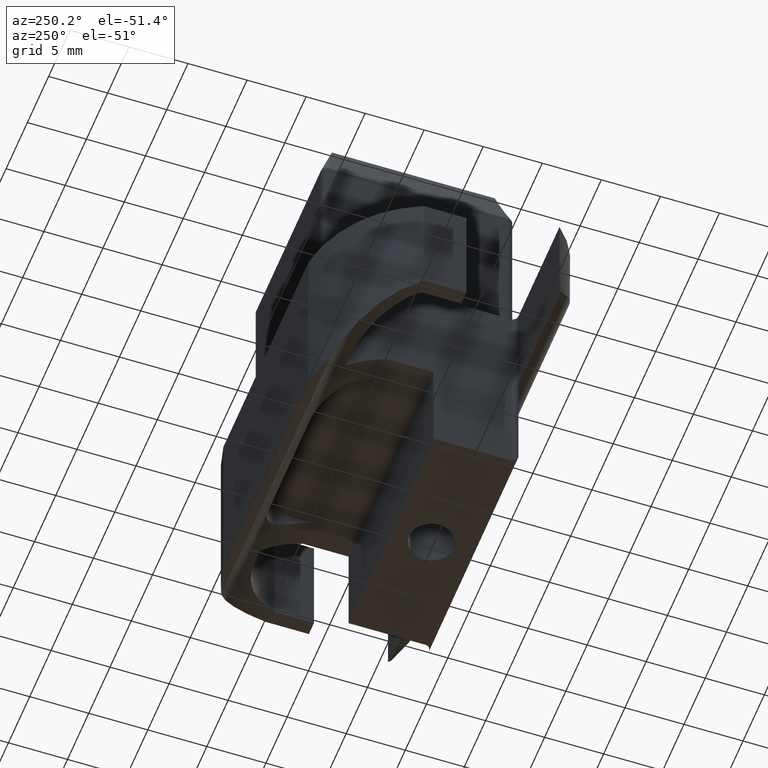
[diagram: clean part render]
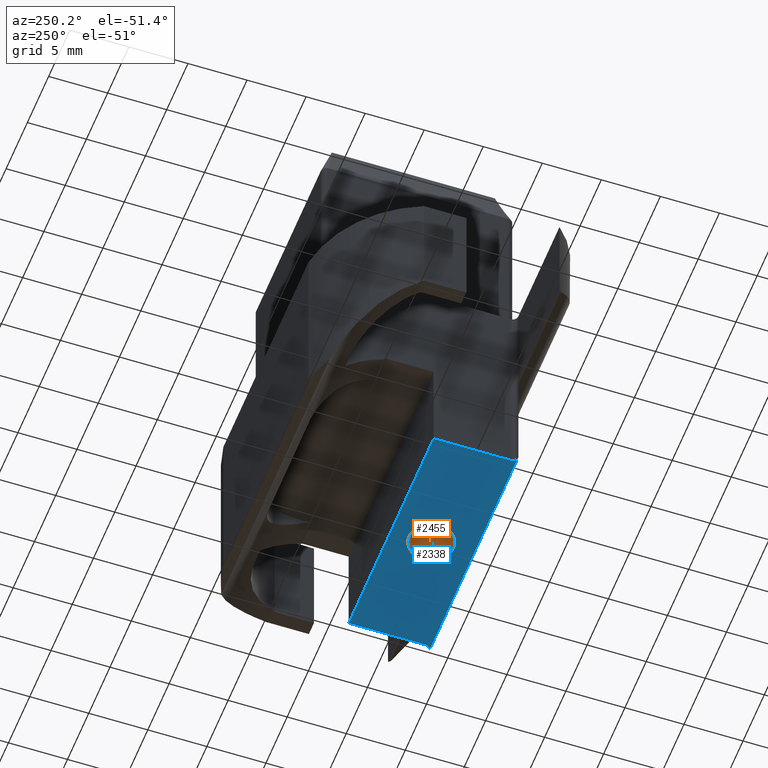
[diagram: same view with the hole feature highlighted: cylindrical wall and planar end face, labeled with their STEP entity ids]
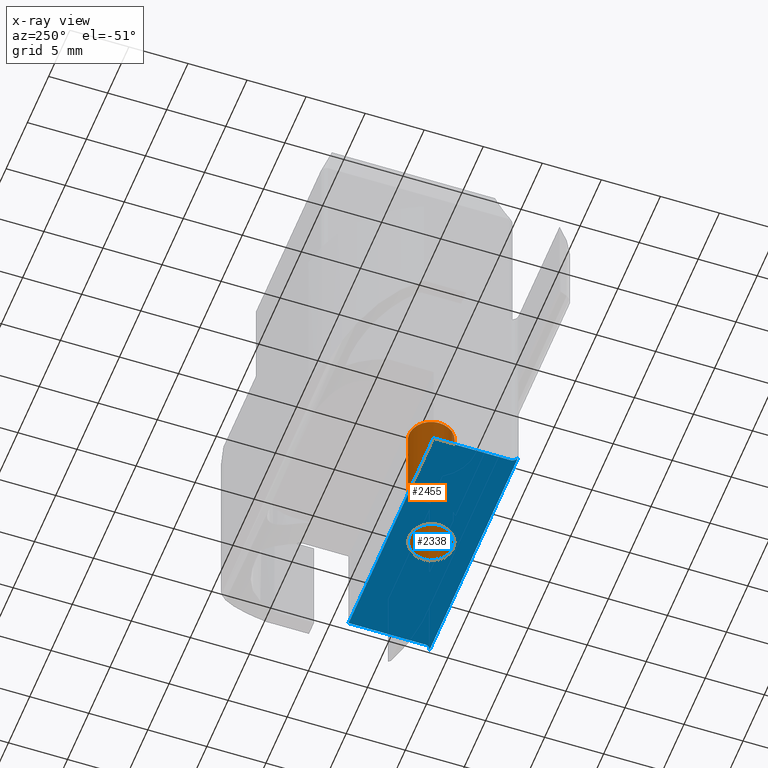
[diagram: x-ray of the same camera — body ghosted, the hole faces saturated]
A machine part, auxiliary view. The highlighted faces form one hole feature of diameter 3.75 mm: the cylindrical wall (entity #2455, orange) and its adjacent planar end face (entity #2338, blue) — they share a circular edge in the B-rep.
The next image is the same camera in x-ray (body ghosted, the hole faces saturated) — the bore reads through the body.
Wall:
#1191=CARTESIAN_POINT('',(-1.875000000000000,0.000000335524177,12.999991166589554));
#1192=VERTEX_POINT('',#1191);
#1193=CARTESIAN_POINT('',(1.875000000000000,0.000000335524177,12.999991166589552));
#1194=VERTEX_POINT('',#1193);
#1195=CARTESIAN_POINT('',(0.0,0.000000335524177,12.999991166589554));
#1196=DIRECTION('',(0.0,0.000000025809570,1.000000000000000));
#1197=DIRECTION('',(1.0,0.0,0.0));
#1198=AXIS2_PLACEMENT_3D('',#1195,#1196,#1197);
#1199=CIRCLE('',#1198,1.875000000000000);
#1200=EDGE_CURVE('',#1192,#1194,#1199,.T.);
#1202=CARTESIAN_POINT('',(0.0,0.000000335524177,12.999991166589554));
#1203=DIRECTION('',(0.0,0.000000025809570,1.000000000000000));
#1204=DIRECTION('',(1.0,0.0,0.0));
#1205=AXIS2_PLACEMENT_3D('',#1202,#1203,#1204);
#1206=CIRCLE('',#1205,1.875000000000000);
#1207=EDGE_CURVE('',#1194,#1192,#1206,.T.);
#2318=CARTESIAN_POINT('',(-1.875000000000000,0.0,0.0));
#2319=VERTEX_POINT('',#2318);
#2320=CARTESIAN_POINT('',(1.875000000000000,0.0,0.0));
#2321=VERTEX_POINT('',#2320);
#2322=CARTESIAN_POINT('',(0.0,0.0,0.0));
#2323=DIRECTION('',(0.0,-0.000000025809570,-1.000000000000000));
#2324=DIRECTION('',(1.0,0.0,0.0));
#2325=AXIS2_PLACEMENT_3D('',#2322,#2323,#2324);
#2326=CIRCLE('',#2325,1.875000000000000);
#2327=EDGE_CURVE('',#2319,#2321,#2326,.T.);
#2329=CARTESIAN_POINT('',(0.0,0.0,0.0));
#2330=DIRECTION('',(0.0,-0.000000025809570,-1.000000000000000));
#2331=DIRECTION('',(1.0,0.0,0.0));
#2332=AXIS2_PLACEMENT_3D('',#2329,#2330,#2331);
#2333=CIRCLE('',#2332,1.875000000000000);
#2334=EDGE_CURVE('',#2321,#2319,#2333,.T.);
#2437=CARTESIAN_POINT('',(0.0,0.000000335524177,12.999991166589552));
#2438=DIRECTION('',(0.0,0.000000025809570,1.000000000000000));
#2439=DIRECTION('',(1.0,0.0,0.0));
#2440=AXIS2_PLACEMENT_3D('',#2437,#2438,#2439);
#2441=CYLINDRICAL_SURFACE('',#2440,1.875000000000000);
#2442=CARTESIAN_POINT('',(1.875000000000000,0.000000335524177,12.999991166589552));
#2443=DIRECTION('',(0.0,-0.000000025809570,-1.000000000000000));
#2444=VECTOR('',#2443,12.999991166589556);
#2445=LINE('',#2442,#2444);
#2446=EDGE_CURVE('',#1194,#2321,#2445,.T.);
#2447=ORIENTED_EDGE('',*,*,#2446,.T.);
#2448=ORIENTED_EDGE('',*,*,#2334,.T.);
#2449=ORIENTED_EDGE('',*,*,#2327,.T.);
#2450=ORIENTED_EDGE('',*,*,#2446,.F.);
#2451=ORIENTED_EDGE('',*,*,#1207,.T.);
#2452=ORIENTED_EDGE('',*,*,#1200,.T.);
#2453=EDGE_LOOP('',(#2447,#2448,#2449,#2450,#2451,#2452));
#2454=FACE_OUTER_BOUND('',#2453,.T.);
#2455=ADVANCED_FACE('',(#2454),#2441,.F.);
End face:
#7=CARTESIAN_POINT('',(10.500000000282853,-3.600000206472238,0.000000092914547));
#8=VERTEX_POINT('',#7);
#17=CARTESIAN_POINT('',(10.000000000282853,-3.100000206472234,0.000000080009613));
#18=VERTEX_POINT('',#17);
#19=CARTESIAN_POINT('',(10.500000000282853,-3.100000206472239,0.000000080009613));
#20=DIRECTION('',(7.785792E-025,0.000000025809570,1.000000000000000));
#21=DIRECTION('',(0.0,-1.000000000000000,0.000000025809570));
#22=AXIS2_PLACEMENT_3D('',#19,#20,#21);
#23=CIRCLE('',#22,0.500000000000000);
#24=EDGE_CURVE('',#18,#8,#23,.T.);
#58=CARTESIAN_POINT('',(10.000000000282853,3.400000245179109,-0.000000087752483));
#59=VERTEX_POINT('',#58);
#60=CARTESIAN_POINT('',(10.000000000282853,-3.100000206472234,0.000000080009613));
#61=DIRECTION('',(0.0,1.000000000000000,-0.000000025809551));
#62=VECTOR('',#61,6.500000451651344);
#63=LINE('',#60,#62);
#64=EDGE_CURVE('',#18,#59,#63,.T.);
#536=CARTESIAN_POINT('',(-9.999999999988177,3.400000245179109,-0.000000087752483));
#537=VERTEX_POINT('',#536);
#544=CARTESIAN_POINT('',(-9.999999999988177,-3.100000206472237,0.000000080009613));
#545=VERTEX_POINT('',#544);
#546=CARTESIAN_POINT('',(-9.999999999988177,-3.100000206472237,0.000000080009613));
#547=DIRECTION('',(0.0,1.000000000000000,-0.000000025809551));
#548=VECTOR('',#547,6.500000451651348);
#549=LINE('',#546,#548);
#550=EDGE_CURVE('',#545,#537,#549,.T.);
#574=CARTESIAN_POINT('',(-10.499999999957254,-3.600000206472239,0.000000092914547));
#575=VERTEX_POINT('',#574);
#576=CARTESIAN_POINT('',(-10.499999999957254,-3.100000206502979,0.000000080009613));
#577=DIRECTION('',(0.0,0.000000025809570,1.000000000000000));
#578=DIRECTION('',(1.0,0.0,0.0));
#579=AXIS2_PLACEMENT_3D('',#576,#577,#578);
#580=CIRCLE('',#579,0.499999999969260);
#581=EDGE_CURVE('',#575,#545,#580,.T.);
#2290=CARTESIAN_POINT('',(-9.999999999988177,3.400000245179109,-0.000000087752483));
#2291=DIRECTION('',(1.0,0.0,0.0));
#2292=VECTOR('',#2291,20.000000000271029);
#2293=LINE('',#2290,#2292);
#2294=EDGE_CURVE('',#537,#59,#2293,.T.);
#2300=CARTESIAN_POINT('',(-36.266847991942996,3.400000245179109,-0.000000087752483));
#2301=DIRECTION('',(0.0,0.000000025809576,1.000000000000000));
#2302=DIRECTION('',(0.0,-1.000000000000000,0.000000025809576));
#2303=AXIS2_PLACEMENT_3D('',#2300,#2301,#2302);
#2304=PLANE('',#2303);
#2305=ORIENTED_EDGE('',*,*,#581,.T.);
#2306=ORIENTED_EDGE('',*,*,#550,.T.);
#2307=ORIENTED_EDGE('',*,*,#2294,.T.);
#2308=ORIENTED_EDGE('',*,*,#64,.F.);
#2309=ORIENTED_EDGE('',*,*,#24,.T.);
#2310=CARTESIAN_POINT('',(-10.499999999957254,-3.599999793528555,0.000000092914547));
#2311=DIRECTION('',(1.0,0.0,0.0));
#2312=VECTOR('',#2311,21.000000000240107);
#2313=LINE('',#2310,#2312);
#2314=EDGE_CURVE('',#575,#8,#2313,.T.);
#2315=ORIENTED_EDGE('',*,*,#2314,.F.);
#2316=EDGE_LOOP('',(#2305,#2306,#2307,#2308,#2309,#2315));
#2317=FACE_OUTER_BOUND('',#2316,.T.);
#2318=CARTESIAN_POINT('',(-1.875000000000000,0.0,0.0));
#2319=VERTEX_POINT('',#2318);
#2320=CARTESIAN_POINT('',(1.875000000000000,0.0,0.0));
#2321=VERTEX_POINT('',#2320);
#2322=CARTESIAN_POINT('',(0.0,0.0,0.0));
#2323=DIRECTION('',(0.0,-0.000000025809570,-1.000000000000000));
#2324=DIRECTION('',(1.0,0.0,0.0));
#2325=AXIS2_PLACEMENT_3D('',#2322,#2323,#2324);
#2326=CIRCLE('',#2325,1.875000000000000);
#2327=EDGE_CURVE('',#2319,#2321,#2326,.T.);
#2328=ORIENTED_EDGE('',*,*,#2327,.F.);
#2329=CARTESIAN_POINT('',(0.0,0.0,0.0));
#2330=DIRECTION('',(0.0,-0.000000025809570,-1.000000000000000));
#2331=DIRECTION('',(1.0,0.0,0.0));
#2332=AXIS2_PLACEMENT_3D('',#2329,#2330,#2331);
#2333=CIRCLE('',#2332,1.875000000000000);
#2334=EDGE_CURVE('',#2321,#2319,#2333,.T.);
#2335=ORIENTED_EDGE('',*,*,#2334,.F.);
#2336=EDGE_LOOP('',(#2328,#2335));
#2337=FACE_BOUND('',#2336,.T.);
#2338=ADVANCED_FACE('',(#2317,#2337),#2304,.F.);